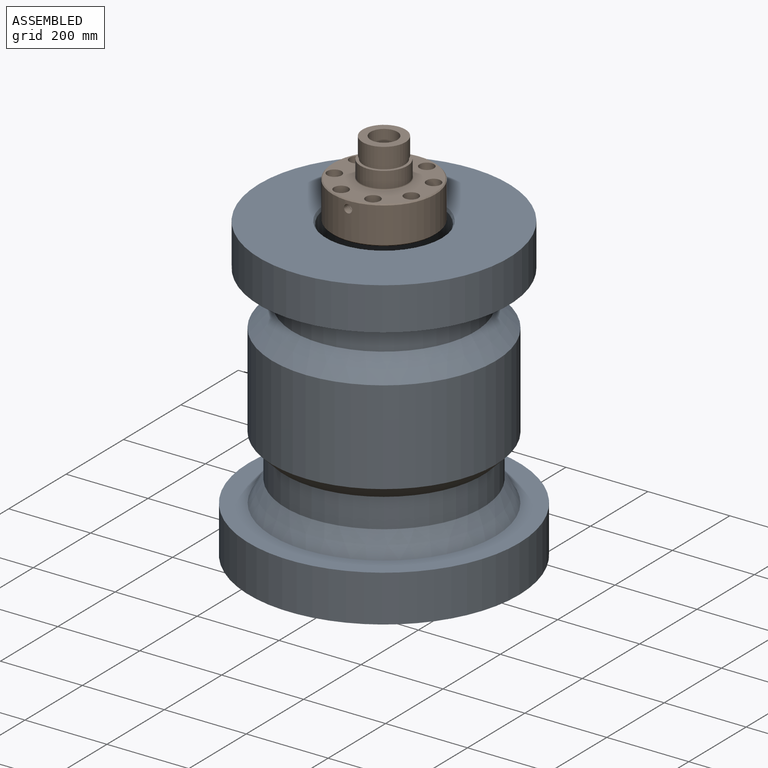
[diagram: assembled view]
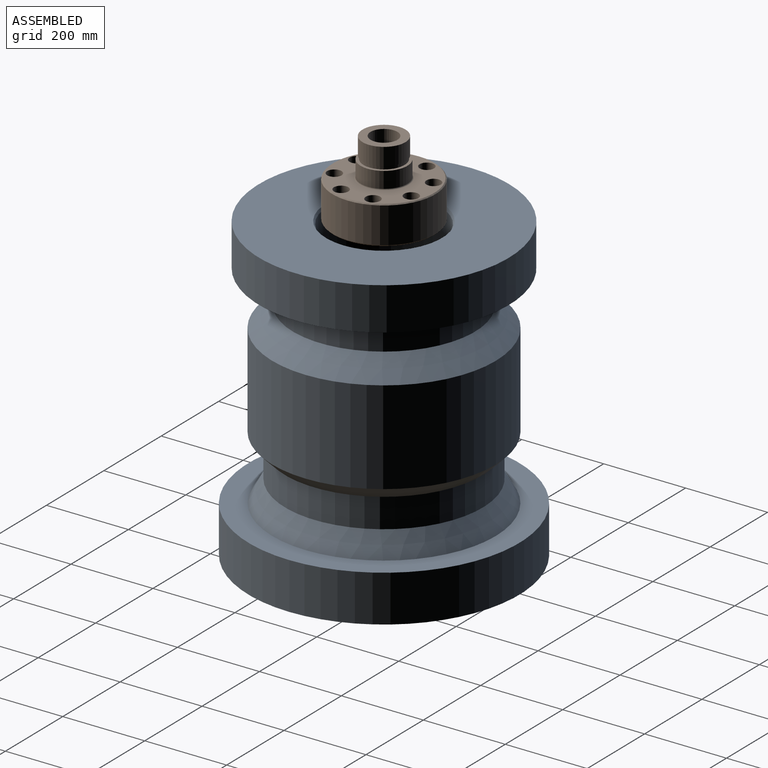
[diagram: assembled view, second angle]
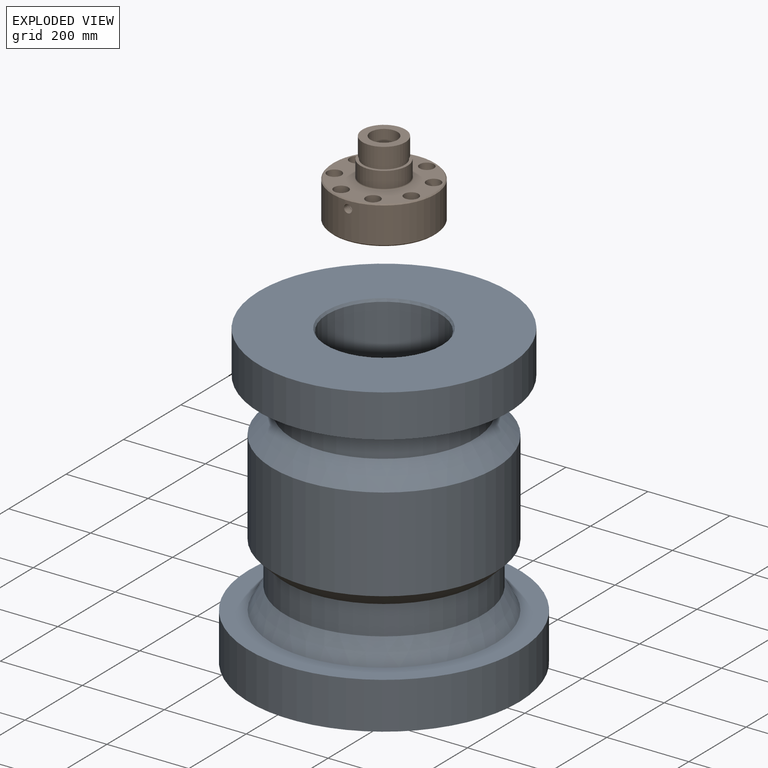
[diagram: exploded view]
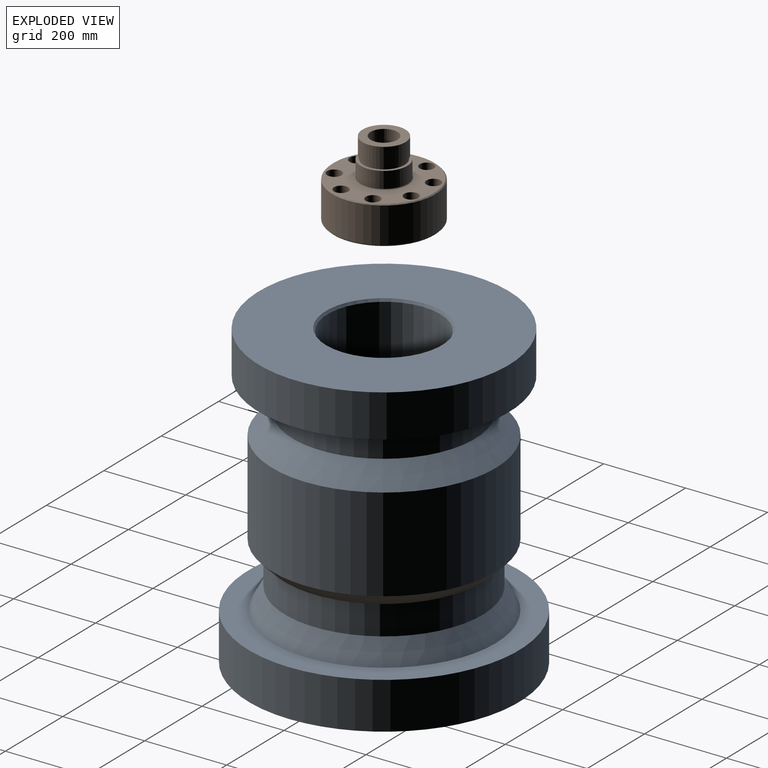
[diagram: exploded view, second angle]
ASSEMBLY  parts=2 mates=2
PART A: 18 faces, bbox 660.4x660.4x736.6 mm
  f0: cone r=107.95mm half-angle=45deg, axis (0,0,-1), area 12898.7mm2, adj f1,f17
  f1: cylinder r=120.65mm len=241.3mm, axis (0,0,-1), area 96274.4mm2, adj f0,f2
  f2: plane 660.4x660.4mm, normal (0,0,-1), area 296803.9mm2, adj f1,f3
  f3: cylinder r=330.2mm len=660.4mm, axis (0,0,-1), area 237139.1mm2, adj f2,f4
  f4: plane 660.4x660.4mm, normal (0,0,1), area 108834.5mm2, adj f3,f5
  f5: cone r=272.74mm half-angle=30deg, axis (0,0,-1), area 101556.7mm2, adj f4,f6
  f6: cylinder r=241.3mm len=482.6mm, axis (0,0,-1), area 108521.8mm2, adj f5,f7
  f7: cone r=241.3mm half-angle=45deg, axis (0,0,1), area 72555mm2, adj f6,f8
  f8: cylinder r=273.05mm len=546.1mm, axis (0,0,-1), area 392589.2mm2, adj f7,f9
  f9: cone r=273.05mm half-angle=45deg, axis (0,0,-1), area 111788.4mm2, adj f8,f10
  f10: cylinder r=222.25mm len=444.5mm, axis (0,0,-1), area 112746.6mm2, adj f9,f11
  f11: plane 609.6x609.6mm, normal (0,0,-1), area 136684.3mm2, adj f10,f12
  f12: cylinder r=304.8mm len=609.6mm, axis (0,0,-1), area 199440.1mm2, adj f11,f13
  f13: plane 609.6x609.6mm, normal (0,0,1), area 228826.8mm2, adj f12,f14
  f14: cone r=141.65mm half-angle=30deg, axis (0,0,1), area 6441.5mm2, adj f13,f15
  f15: cylinder r=137.99mm len=275.97mm, axis (0,0,-1), area 181677.4mm2, adj f14,f16
  f16: cone r=137.99mm half-angle=45deg, axis (0,0,1), area 32818.7mm2, adj f15,f17
  f17: cylinder r=107.95mm len=350.96mm, axis (0,0,-1), area 238048.6mm2, adj f0,f16
PART B: 48 faces, bbox 251.5x187.6x251.5 mm
  f0: plane 142.75x142.75mm, normal (0,-1,0), area 1283.1mm2, adj f17,f45
  f1: cylinder r=62.17mm len=124.33mm, axis (0,1,0), area 12996.9mm2, adj f35,f46
  f2: plane 246.38x246.38mm, normal (0,1,0), area 28763.1mm2, adj f11,f12,f27,f28,f29,f30,f31,f32
  f3: plane 70.87x70.87mm, normal (0,-1,0), area 563.6mm2, adj f4,f26
  f4: cylinder r=32.8mm len=65.61mm, axis (0,1,0), area 8795.3mm2, adj f3,f5
  f5: plane 104.65x104.65mm, normal (0,1,0), area 5220.4mm2, adj f4,f6
  f6: cylinder r=52.32mm len=104.65mm, axis (0,1,0), area 14028.9mm2, adj f5,f7
  f7: plane 104.65x104.65mm, normal (0,-1,0), area 715.2mm2, adj f6,f8
  f8: cylinder r=50.1mm len=100.2mm, axis (0,1,0), area 2558.7mm2, adj f7,f9
  f9: plane 114.3x114.3mm, normal (0,1,0), area 2374.9mm2, adj f8,f10
  f10: cylinder r=57.15mm len=114.3mm, axis (0,1,0), area 14100.7mm2, adj f9,f11
  f11: torus R=59.69mm, axis (0,1,0), area 1455.8mm2, adj f2,f10
  f12: cone r=125.73mm half-angle=45deg, axis (0,-1,0), area 2809mm2, adj f2,f13
  f13: cylinder r=125.73mm len=251.46mm, axis (0,1,0), area 68964.7mm2, adj f12,f14,f39
  f14: cone r=122.55mm half-angle=45deg, axis (0,1,0), area 3502.3mm2, adj f13,f15
  f15: plane 245.11x245.11mm, normal (0,-1,0), area 23118.5mm2, adj f14,f16,f27,f28,f29,f30,f31,f32
  f16: cylinder r=72.14mm len=144.27mm, axis (0,1,0), area 374.2mm2, adj f15,f45
  f17: plane 136.91x136.91mm, normal (0,-1,0), area 797.3mm2, adj f0,f47
  f18: plane 119.25x119.25mm, normal (0,-1,0), area 8488.9mm2, adj f35,f36
  f19: cylinder r=26.67mm len=53.34mm, axis (0,1,0), area 1770.6mm2, adj f20,f36
  f20: cone r=21.59mm half-angle=45deg, axis (0,-1,0), area 1089.2mm2, adj f19,f21
  f21: cylinder r=21.59mm len=43.18mm, axis (0,1,0), area 3965.2mm2, adj f20,f22,f43
  f22: plane 57.15x57.15mm, normal (0,1,0), area 1100.8mm2, adj f21,f23
  f23: cylinder r=28.57mm len=57.15mm, axis (0,1,0), area 6703.7mm2, adj f22,f24
  f24: cone r=29.94mm half-angle=15deg, axis (0,1,0), area 966.7mm2, adj f23,f25
  f25: plane 70.87x70.87mm, normal (0,1,0), area 1128.8mm2, adj f24,f26
  f26: cylinder r=35.43mm len=70.87mm, axis (0,1,0), area 1809.6mm2, adj f3,f25
  f27: cylinder r=17.53mm len=93.41mm, axis (0,1,0), area 10286.1mm2, adj f2,f15
  f28: cylinder r=17.53mm len=93.41mm, axis (0,1,0), area 10286.1mm2, adj f2,f15
  f29: cylinder r=17.53mm len=93.41mm, axis (0,1,0), area 10286.1mm2, adj f2,f15
  f30: cylinder r=17.53mm len=93.41mm, axis (0,1,0), area 10286.1mm2, adj f2,f15
  f31: cylinder r=17.53mm len=93.41mm, axis (0,1,0), area 10286.1mm2, adj f2,f15
  f32: cylinder r=17.53mm len=93.41mm, axis (0,1,0), area 10286.1mm2, adj f2,f15
  f33: cylinder r=17.53mm len=93.41mm, axis (0,1,0), area 10286.1mm2, adj f2,f15
  f34: cylinder r=17.53mm len=93.41mm, axis (0,1,0), area 10286.1mm2, adj f2,f15
  f35: torus R=59.63mm, axis (0,1,0), area 1535.3mm2, adj f1,f18
  f36: cone r=29.21mm half-angle=45deg, axis (0,-1,0), area 630.6mm2, adj f18,f19
  f37: plane 130.1x130.1mm, normal (0,-1,0), area 852.7mm2, adj f44,f46
  f38: cylinder r=65.81mm len=131.62mm, axis (0,-1,0), area 3571mm2, adj f44,f47
  f39: cone r=9.97mm half-angle=1.7deg, axis (0,0,1), area 997.1mm2, adj f13,f42
  f40: cone r=8.93mm half-angle=59deg, axis (0,0,1), area 255.2mm2, adj f41,f43
  f41: cylinder r=8.93mm len=17.86mm, axis (0,0,1), area 508.7mm2, adj f40,f42
  f42: plane 18.96x18.96mm, normal (0,0,1), area 31.9mm2, adj f39,f41
  f43: cylinder r=3.17mm len=75.34mm, axis (0,0,1), area 1500.6mm2, adj f21,f40
  f44: torus R=65.05mm, axis (0,-1,0), area 492.9mm2, adj f37,f38
  f45: cone r=72.14mm half-angle=45deg, axis (0,1,0), area 485.8mm2, adj f0,f16
  f46: cone r=62.93mm half-angle=45deg, axis (0,-1,0), area 423.5mm2, adj f1,f37
  f47: cone r=65.81mm half-angle=45deg, axis (0,-1,0), area 448.2mm2, adj f17,f38
PLACE A t=(-545.42,202.31,342.62)mm
PLACE B rot(axis=(1,0,0),90deg) t=(-545.42,202.31,1079.22)mm
MATE cylindrical B.f14 <-> A.f0  axis (0,0,1) through (-545.42,202.31,1127.83)mm
MATE planar B.f1 <-> A.f0  axis (0,0,-1) through (-545.42,202.31,1079.22)mm
